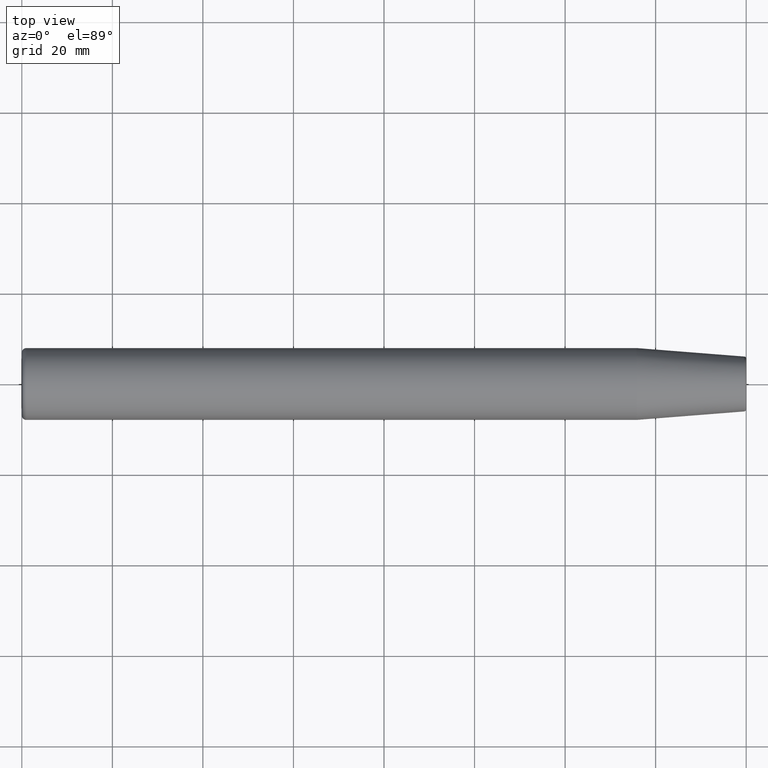
[diagram: clean part render]
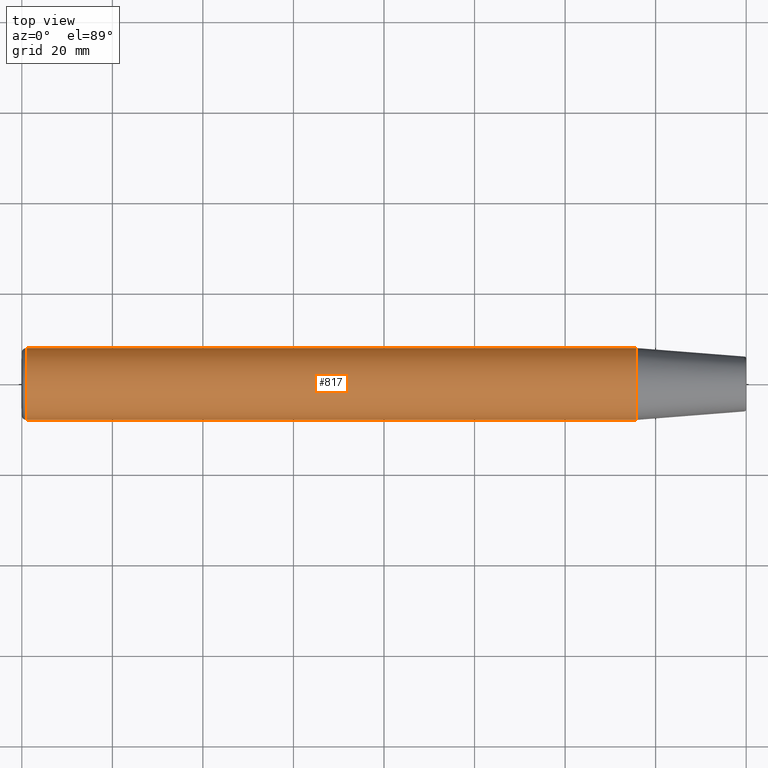
[diagram: same view with one face highlighted and labeled with its STEP entity id]
A machine part, top view. The second image highlights one B-rep face of the part: STEP entity #817.
In plain terms, the highlighted cylindrical surface (edge-blend (fillet) strip) has radius 7.9375 mm, axis along (1, 0, 0).
Its self-contained STEP definition (entity closure, byte-faithful):
#2=CARTESIAN_POINT('',(1.E0,0.E0,0.E0));
#3=DIRECTION('',(1.E0,0.E0,0.E0));
#4=DIRECTION('',(0.E0,1.E0,0.E0));
#5=AXIS2_PLACEMENT_3D('',#2,#3,#4);
#284=CARTESIAN_POINT('',(1.357787972217E2,0.E0,0.E0));
#285=DIRECTION('',(1.E0,0.E0,0.E0));
#286=DIRECTION('',(0.E0,1.E0,0.E0));
#287=AXIS2_PLACEMENT_3D('',#284,#285,#286);
#289=DIRECTION('',(-1.E0,0.E0,0.E0));
#290=VECTOR('',#289,1.347787972217E2);
#291=CARTESIAN_POINT('',(1.357787972217E2,7.9375E0,0.E0));
#292=LINE('',#291,#290);
#293=DIRECTION('',(-1.E0,0.E0,0.E0));
#294=VECTOR('',#293,1.347787972217E2);
#295=CARTESIAN_POINT('',(1.357787972217E2,-7.9375E0,0.E0));
#296=LINE('',#295,#294);
#302=CARTESIAN_POINT('',(1.E0,7.9375E0,0.E0));
#304=VERTEX_POINT('',#302);
#336=CARTESIAN_POINT('',(1.357787972217E2,7.9375E0,0.E0));
#337=VERTEX_POINT('',#336);
#338=CARTESIAN_POINT('',(1.E0,-7.9375E0,0.E0));
#340=VERTEX_POINT('',#338);
#372=CARTESIAN_POINT('',(1.357787972217E2,-7.9375E0,0.E0));
#373=VERTEX_POINT('',#372);
#804=CARTESIAN_POINT('',(-8.E0,0.E0,0.E0));
#805=DIRECTION('',(1.E0,0.E0,0.E0));
#806=DIRECTION('',(0.E0,-1.E0,0.E0));
#807=AXIS2_PLACEMENT_3D('',#804,#805,#806);
#808=CYLINDRICAL_SURFACE('',#807,7.9375E0);
#810=ORIENTED_EDGE('',*,*,#809,.F.);
#811=ORIENTED_EDGE('',*,*,#799,.T.);
#813=ORIENTED_EDGE('',*,*,#812,.T.);
#814=ORIENTED_EDGE('',*,*,#381,.F.);
#815=EDGE_LOOP('',(#810,#811,#813,#814));
#816=FACE_OUTER_BOUND('',#815,.F.);
#817=ADVANCED_FACE('',(#816),#808,.T.);
#6=CIRCLE('',#5,7.9375E0);
#288=CIRCLE('',#287,7.9375E0);
#381=EDGE_CURVE('',#304,#340,#6,.T.);
#799=EDGE_CURVE('',#337,#373,#288,.T.);
#809=EDGE_CURVE('',#337,#304,#292,.T.);
#812=EDGE_CURVE('',#373,#340,#296,.T.);